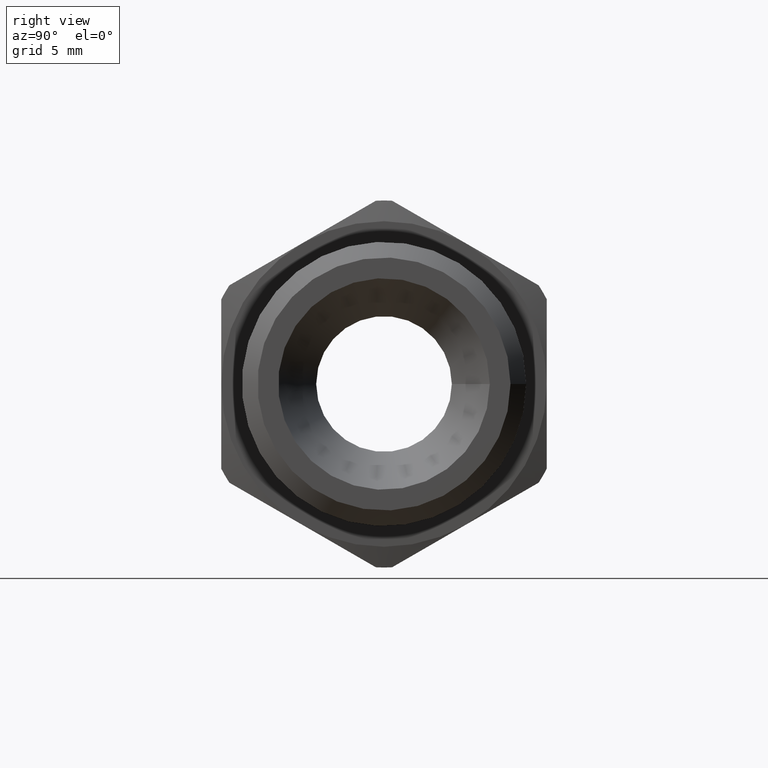
[diagram: clean part render]
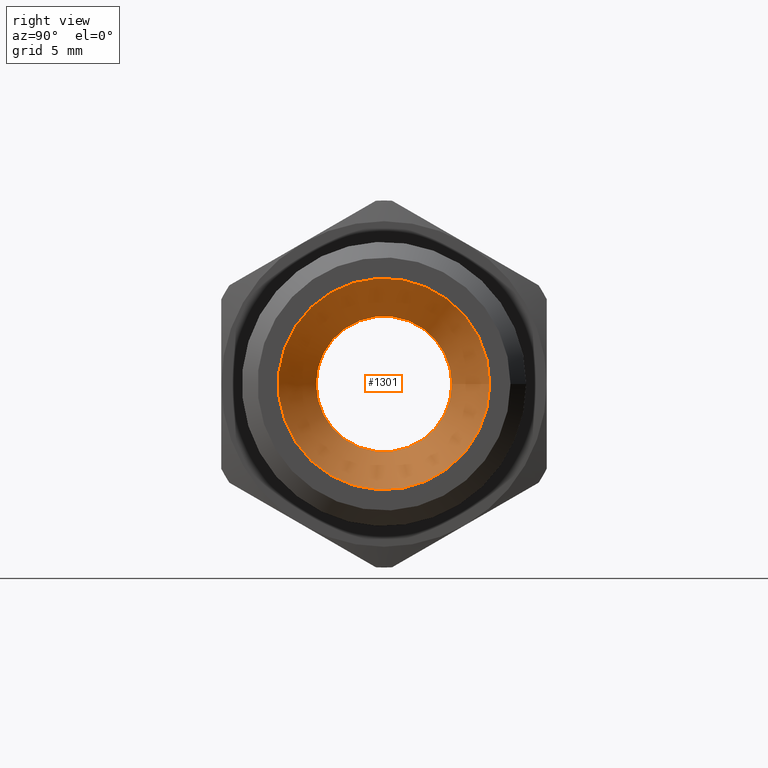
[diagram: same view with one face highlighted and labeled with its STEP entity id]
A machine part, right view. The second image highlights one B-rep face of the part: STEP entity #1301.
In plain terms, the highlighted conical surface has half-angle 22.5 deg.
Its self-contained STEP definition (entity closure, byte-faithful):
#124=CARTESIAN_POINT('',(40.0,7.800000000000001,0.0));
#125=VERTEX_POINT('',#124);
#126=CARTESIAN_POINT('',(40.0,0.0,0.0));
#127=DIRECTION('',(1.0,0.0,0.0));
#128=DIRECTION('',(0.0,1.0,0.0));
#129=AXIS2_PLACEMENT_3D('',#126,#127,#128);
#130=CIRCLE('',#129,7.800000000000001);
#131=EDGE_CURVE('',#125,#125,#130,.T.);
#1282=CARTESIAN_POINT('',(36.620101012677672,0.0,0.0));
#1283=DIRECTION('',(1.0,0.0,0.0));
#1284=DIRECTION('',(0.0,1.0,0.0));
#1285=AXIS2_PLACEMENT_3D('',#1282,#1283,#1284);
#1286=CONICAL_SURFACE('',#1285,6.4,22.500000000000039);
#1287=CARTESIAN_POINT('',(33.240202025355345,5.0,0.0));
#1288=VERTEX_POINT('',#1287);
#1289=CARTESIAN_POINT('',(33.240202025355345,0.0,0.0));
#1290=DIRECTION('',(1.0,0.0,0.0));
#1291=DIRECTION('',(0.0,1.0,0.0));
#1292=AXIS2_PLACEMENT_3D('',#1289,#1290,#1291);
#1293=CIRCLE('',#1292,5.0);
#1294=EDGE_CURVE('',#1288,#1288,#1293,.T.);
#1295=ORIENTED_EDGE('',*,*,#1294,.F.);
#1296=EDGE_LOOP('',(#1295));
#1297=FACE_OUTER_BOUND('',#1296,.T.);
#1298=ORIENTED_EDGE('',*,*,#131,.T.);
#1299=EDGE_LOOP('',(#1298));
#1300=FACE_BOUND('',#1299,.T.);
#1301=ADVANCED_FACE('',(#1297,#1300),#1286,.F.);